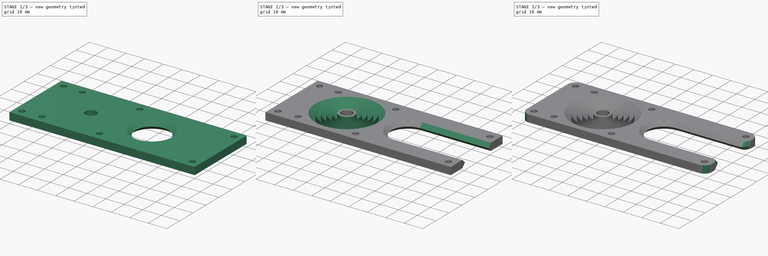
[diagram: build sequence overview — one tinted view per stage of 3, left to right]
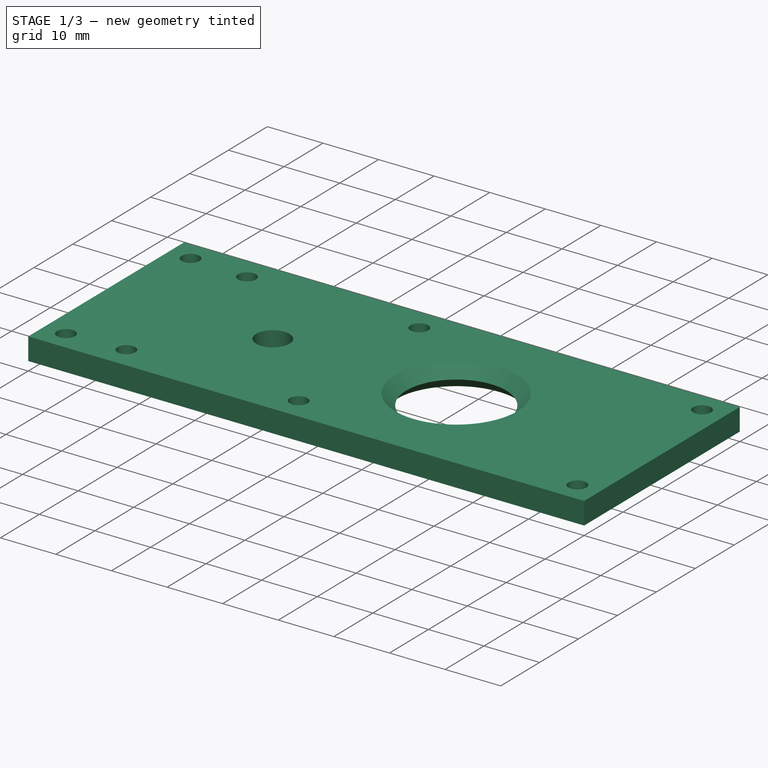
[diagram: stage 1 of 3 — iso view after this stage's code; geometry added in this stage tinted green]
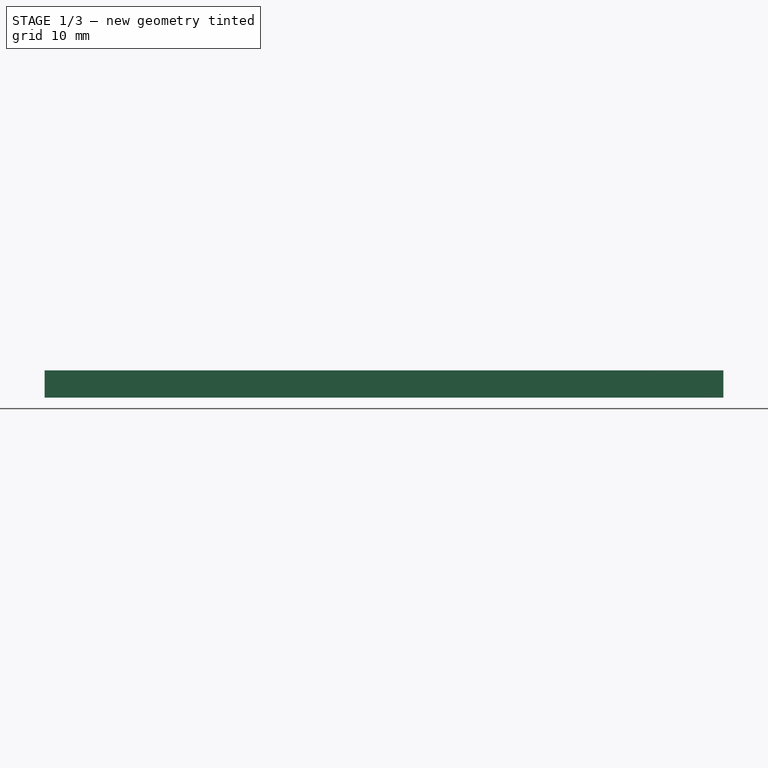
[diagram: stage 1 of 3 — front view after this stage's code; geometry added in this stage tinted green]
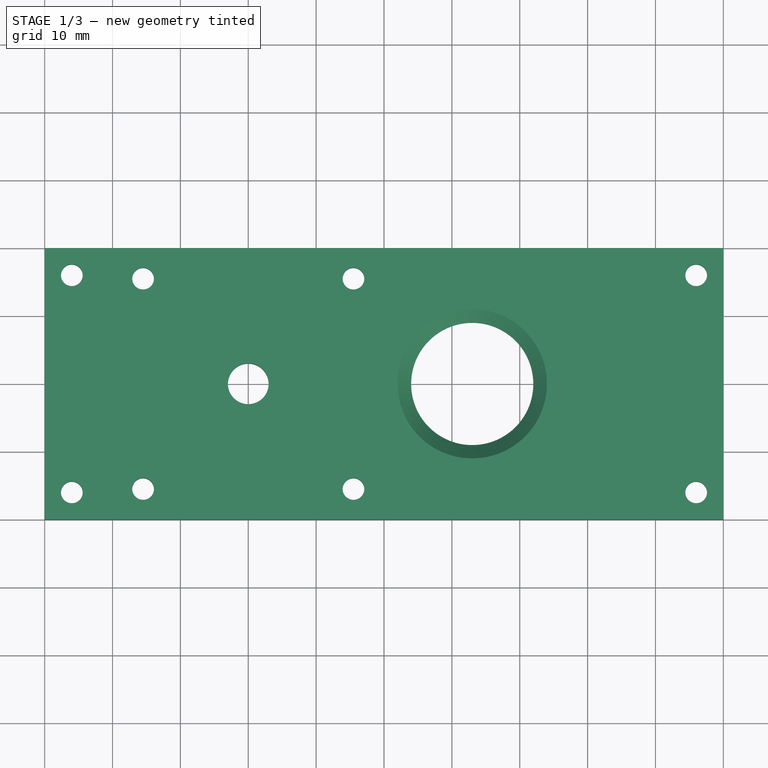
[diagram: stage 1 of 3 — top view after this stage's code; geometry added in this stage tinted green]
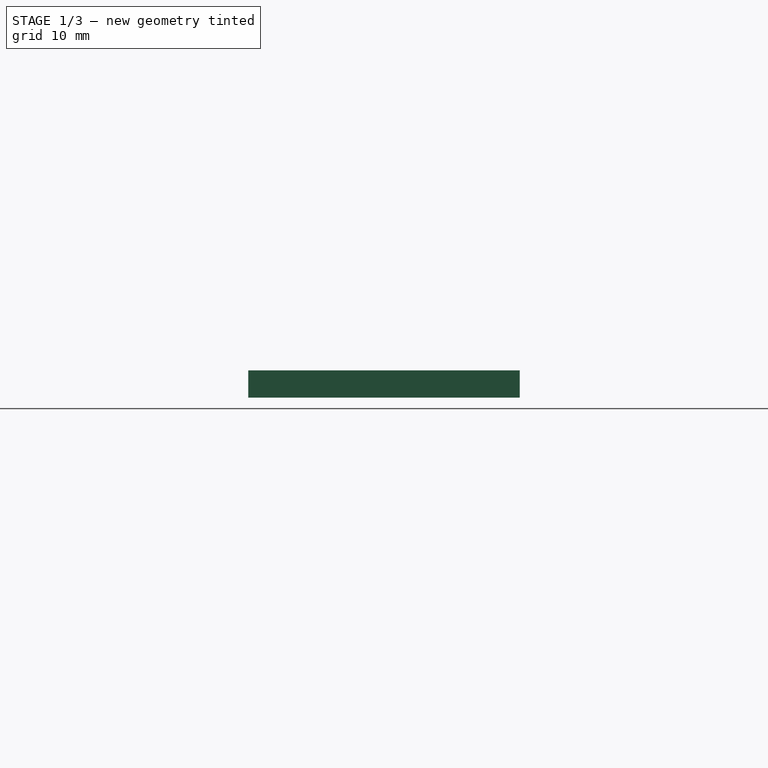
[diagram: stage 1 of 3 — right view after this stage's code; geometry added in this stage tinted green]
FCSTD DOCUMENT  (FreeCAD 0.18R15441 (Git))
Label: FrameBottom
License: All rights reserved
LicenseURL: http://en.wikipedia.org/wiki/All_rights_reserved
objects: Sketcher::SketchObject×9, PartDesign::Plane×3, PartDesign::SubtractiveLoft×2, PartDesign::Fillet×2, PartDesign::Pad×1, PartDesign::Pocket×1, PartDesign::Line×1, PartDesign::Groove×1, PartDesign::Body×1, Part::FeaturePython×1, App::Part×1
note: 27 computed .brp shape members not serialized (recipe doc carries the construction recipe); baked Part::Feature solids carry a one-line shape summary decoded from their .brp

FEATURE [Sketcher::SketchObject] Sketch  label="FB_BaseSketch"
  MapMode = 5
  Placement = pos=(0,0,0) rot=(0.57735,0.57735,0.57735;2.0944rad)
  Support = -> [YZ_Plane001]
  sketch-geometry (8):
    g0: LineSegment StartX=0 StartY=2 StartZ=0 EndX=-20 EndY=2 EndZ=0
    g1: LineSegment StartX=-20 StartY=2 StartZ=0 EndX=-20 EndY=0 EndZ=0
    g2: LineSegment StartX=-20 StartY=0 StartZ=0 EndX=-20 EndY=-2 EndZ=0
    g3: LineSegment StartX=-20 StartY=-2 StartZ=0 EndX=0 EndY=-2 EndZ=0
    g4: LineSegment StartX=0 StartY=-2 StartZ=0 EndX=20 EndY=-2 EndZ=0
    g5: LineSegment StartX=20 StartY=-2 StartZ=0 EndX=20 EndY=0 EndZ=0
    g6: LineSegment StartX=20 StartY=0 StartZ=0 EndX=20 EndY=2 EndZ=0
    g7: LineSegment StartX=20 StartY=2 StartZ=0 EndX=0 EndY=2 EndZ=0
  constraints (24):
    c: PointOnObject(g0,g-2)
    c: Horizontal(g0)
    c: Coincident(g1,g0)
    c: PointOnObject(g1,g-1)
    c: Coincident(g2,g1)
    c: Vertical(g2)
    c: Vertical(g1)
    c: Coincident(g3,g2)
    c: PointOnObject(g3,g-2)
    c: Horizontal(g3)
    c: Coincident(g4,g3)
    c: Horizontal(g4)
    c: Coincident(g5,g4)
    c: Vertical(g5)
    c: PointOnObject(g5,g-1)
    c: Coincident(g6,g5)
    c: Vertical(g6)
    c: Coincident(g7,g6)
    c: Coincident(g7,g0)
    c: Horizontal(g7)
    c: Equal(g3,g4)
    c: Equal(g1,g2)
    c: Distance(g0,g6) = 40
    c: Distance(g0,g2) = 4
FEATURE [PartDesign::Pad] Pad  label="FB_BasePad"
  Length = 100
  Length2 = 100
  Placement = pos=(0,0,0) rot=(0.57735,0.57735,0.57735;2.0944rad)
  Profile = -> Sketch
  Type = 0
FEATURE [Sketcher::SketchObject] Sketch001  label="FB_MotorClampingSketch"
  ExternalGeometry = -> [Sketch]
  MapMode = 5
  Support = -> [XY_Plane001]
  sketch-geometry (21):
    g0: LineSegment [constr] StartX=45.5 StartY=-15.5 StartZ=0 EndX=45.5 EndY=15.5 EndZ=0
    g1: LineSegment [constr] StartX=45.5 StartY=15.5 StartZ=0 EndX=14.5 EndY=15.5 EndZ=0
    g2: LineSegment [constr] StartX=14.5 StartY=15.5 StartZ=0 EndX=14.5 EndY=-15.5 EndZ=0
    g3: LineSegment [constr] StartX=14.5 StartY=-15.5 StartZ=0 EndX=45.5 EndY=-15.5 EndZ=0
    g4: Circle [constr] CenterX=30 CenterY=0 CenterZ=0 NormalX=0 NormalY=0 NormalZ=1 AngleXU=0 Radius=21.9203
    g5: Circle CenterX=14.5 CenterY=15.5 CenterZ=0 NormalX=0 NormalY=0 NormalZ=1 AngleXU=0 Radius=1.6
    g6: Circle CenterX=45.5 CenterY=15.5 CenterZ=0 NormalX=0 NormalY=0 NormalZ=1 AngleXU=0 Radius=1.6
    g7: Circle CenterX=45.5 CenterY=-15.5 CenterZ=0 NormalX=0 NormalY=0 NormalZ=1 AngleXU=0 Radius=1.6
    g8: Circle CenterX=14.5 CenterY=-15.5 CenterZ=0 NormalX=0 NormalY=0 NormalZ=1 AngleXU=0 Radius=1.6
    g9: Circle CenterX=30 CenterY=0 CenterZ=0 NormalX=0 NormalY=0 NormalZ=1 AngleXU=0 Radius=3
    g10: Circle CenterX=4 CenterY=16 CenterZ=0 NormalX=0 NormalY=0 NormalZ=1 AngleXU=0 Radius=1.6
    g11: Circle CenterX=4 CenterY=-16 CenterZ=0 NormalX=0 NormalY=0 NormalZ=1 AngleXU=0 Radius=1.6
    g12: LineSegment [constr] StartX=4 StartY=16 StartZ=0 EndX=4 EndY=20 EndZ=0
    g13: LineSegment [constr] StartX=4 StartY=20 StartZ=0 EndX=2.0002e-12 EndY=20 EndZ=0
    g14: LineSegment [constr] StartX=4 StartY=20 StartZ=0 EndX=8 EndY=20 EndZ=0
    g15: LineSegment [constr] StartX=8 StartY=20 StartZ=0 EndX=92 EndY=20 EndZ=0
    g16: LineSegment [constr] StartX=92 StartY=20 StartZ=0 EndX=96 EndY=20 EndZ=0
    g17: LineSegment [constr] StartX=96 StartY=20 StartZ=0 EndX=100 EndY=20 EndZ=0
    g18: LineSegment [constr] StartX=96 StartY=20 StartZ=0 EndX=96 EndY=16 EndZ=0
    g19: Circle CenterX=96 CenterY=16 CenterZ=0 NormalX=0 NormalY=0 NormalZ=1 AngleXU=0 Radius=1.6
    g20: Circle CenterX=96 CenterY=-16 CenterZ=0 NormalX=0 NormalY=0 NormalZ=1 AngleXU=0 Radius=1.6
  constraints (54):
    c: Coincident(g0,g1)
    c: Coincident(g1,g2)
    c: Coincident(g2,g3)
    c: Coincident(g3,g0)
    c: Equal(g0,g1)
    c: Equal(g0,g2)
    c: Equal(g0,g3)
    c: PointOnObject(g0,g4)
    c: PointOnObject(g1,g4)
    c: PointOnObject(g2,g4)
    c: PointOnObject(g3,g4)
    c: PointOnObject(g4,g-1)
    c: Distance(g-1,g4) = 30
    c: Vertical(g0)
    c: Distance(g1) = 31
    c: Coincident(g5,g1)
    c: Coincident(g6,g0)
    c: Coincident(g7,g0)
    c: Coincident(g8,g2)
    c: Equal(g8,g5)
    c: Equal(g5,g6)
    c: Equal(g6,g7)
    c: Radius(g5) = 1.6
    c: Coincident(g9,g4)
    c: Radius(g9) = 3
    c: Symmetric(g11,g10,g-1)
    c: Equal(g10,g11)
    c: Coincident(g12,g10)
    c: Vertical(g12)
    c: Coincident(g13,g12)
    c: Coincident(g13,g-3)
    c: Horizontal(g13)
    c: Equal(g12,g13)
    c: Coincident(g14,g12)
    c: Horizontal(g14)
    c: Equal(g14,g12)
    c: Distance(g14,g13) = 8
    c: Coincident(g15,g14)
    c: Horizontal(g15)
    c: Coincident(g16,g15)
    c: Horizontal(g16)
    c: Coincident(g17,g16)
    c: Horizontal(g17)
    c: Coincident(g18,g16)
    c: Vertical(g18)
    c: Equal(g16,g17)
    c: Equal(g17,g18)
    c: Distance(g13,g17) = 100
    c: Distance(g15,g17) = 8
    c: Coincident(g19,g18)
    c: Symmetric(g19,g20,g-1)
    c: Equal(g19,g20)
    c: Equal(g10,g5)
    c: Equal(g5,g19)
FEATURE [PartDesign::Pocket] Pocket  label="FB_MotorClampingPocket"
  BaseFeature = -> Pad
  Length = 5
  Length2 = 100
  Midplane = true
  Placement = pos=(0,0,0) rot=(0.57735,0.57735,0.57735;2.0944rad)
  Profile = -> Sketch001
  Type = 1
FEATURE [Sketcher::SketchObject] Sketch003  label="FB_RailEndCenterSketch"
  ExternalGeometry = -> [Sketch001]
  MapMode = 5
  Support = -> [XY_Plane001]
  sketch-geometry (1):
    g0: Circle CenterX=63 CenterY=0 CenterZ=0 NormalX=0 NormalY=0 NormalZ=1 AngleXU=0 Radius=9
  constraints (3):
    c: PointOnObject(g0,g-1)
    c: Radius(g0) = 9
    c: Distance(g-3,g0) = 33
FEATURE [PartDesign::Plane] DatumPlane  label="FB_TopPlane"
  AttachmentOffset = pos=(0,0,2) rot=(0,0,1;0rad)
  Length = 123.266
  MapMode = 5
  Placement = pos=(0,0,2) rot=(0,0,1;0rad)
  ResizeMode = 0
  Support = -> [XY_Plane001]
  Width = 53.2665
FEATURE [PartDesign::Plane] DatumPlane001  label="FB_BottomPlane"
  AttachmentOffset = pos=(0,0,-2) rot=(0,0,1;0rad)
  Length = 123.266
  MapMode = 5
  Placement = pos=(0,0,-2) rot=(0,0,1;0rad)
  ResizeMode = 0
  Support = -> [XY_Plane001]
  Width = 53.2665
FEATURE [Sketcher::SketchObject] Sketch004  label="FB_RailEndTopSketch"
  ExternalGeometry = -> [Sketch003]
  MapMode = 5
  Placement = pos=(0,0,2) rot=(0,0,1;0rad)
  Support = -> [DatumPlane]
  sketch-geometry (1):
    g0: Circle CenterX=63 CenterY=0 CenterZ=0 NormalX=0 NormalY=0 NormalZ=1 AngleXU=0 Radius=11
  constraints (2):
    c: Coincident(g0,g-3)
    c: Radius(g0) = 11
FEATURE [Sketcher::SketchObject] Sketch005  label="FB_RailEndBottomSketch"
  ExternalGeometry = -> [Sketch004]
  MapMode = 5
  Placement = pos=(0,0,-2) rot=(0,0,1;0rad)
  Support = -> [DatumPlane001]
  sketch-geometry (1):
    g0: Circle CenterX=63 CenterY=0 CenterZ=0 NormalX=0 NormalY=0 NormalZ=1 AngleXU=0 Radius=11
  constraints (2):
    c: Coincident(g0,g-3)
    c: Equal(g0,g-3)
FEATURE [PartDesign::SubtractiveLoft] SubtractiveLoft  label="FB_RailEndLoft"
  BaseFeature = -> Pocket
  Closed = false
  Placement = pos=(0,0,0) rot=(0.57735,0.57735,0.57735;2.0944rad)
  Profile = -> Sketch004
  Ruled = true
  Sections = -> [Sketch003,Sketch005]
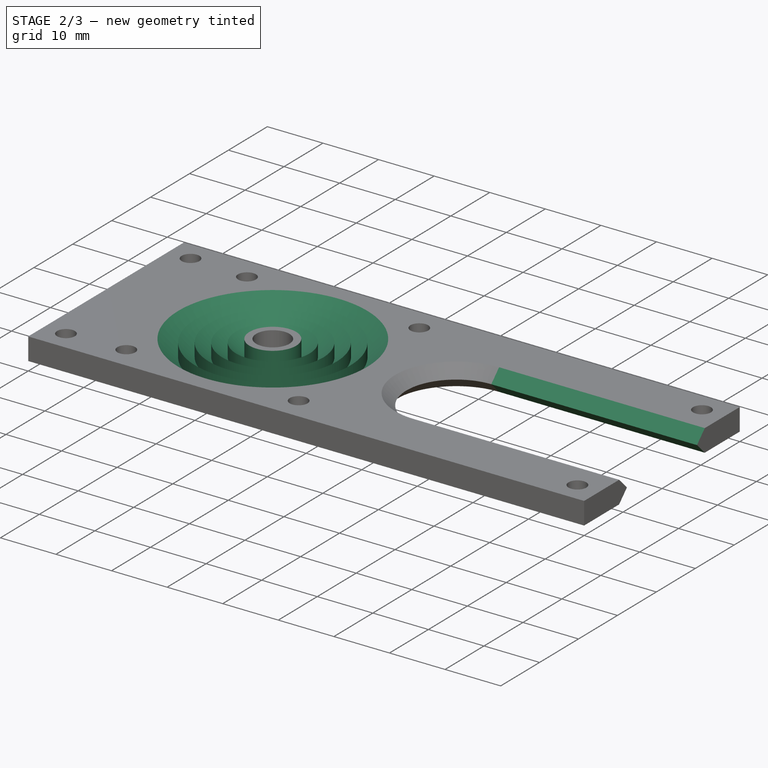
[diagram: stage 2 of 3 — iso view after this stage's code; geometry added in this stage tinted green]
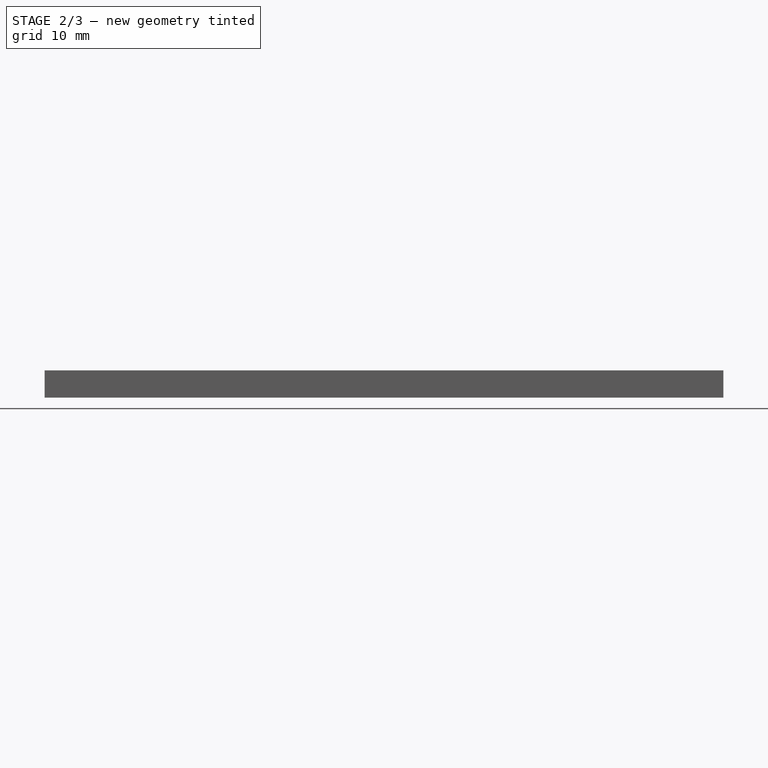
[diagram: stage 2 of 3 — front view after this stage's code; geometry added in this stage tinted green]
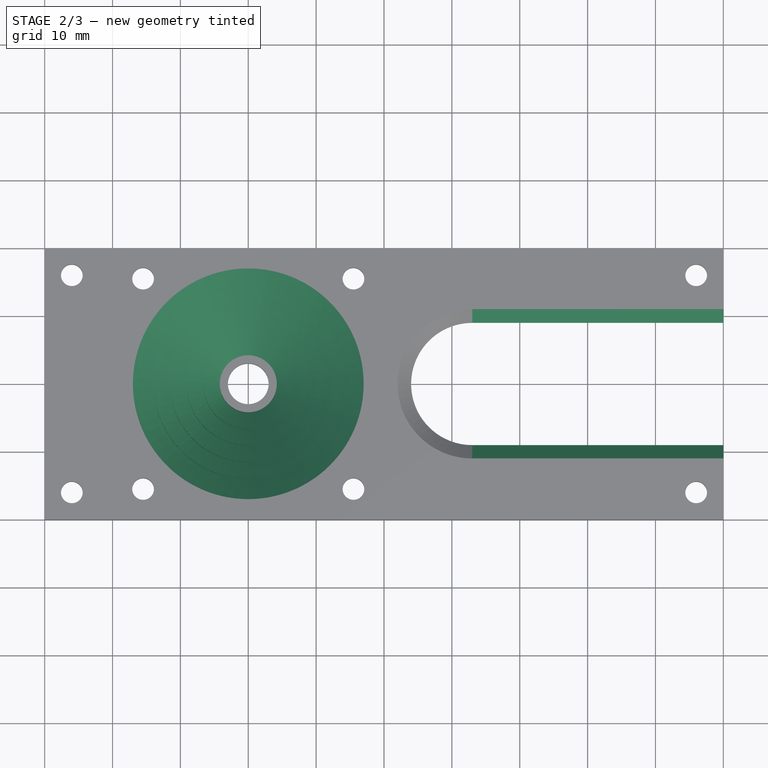
[diagram: stage 2 of 3 — top view after this stage's code; geometry added in this stage tinted green]
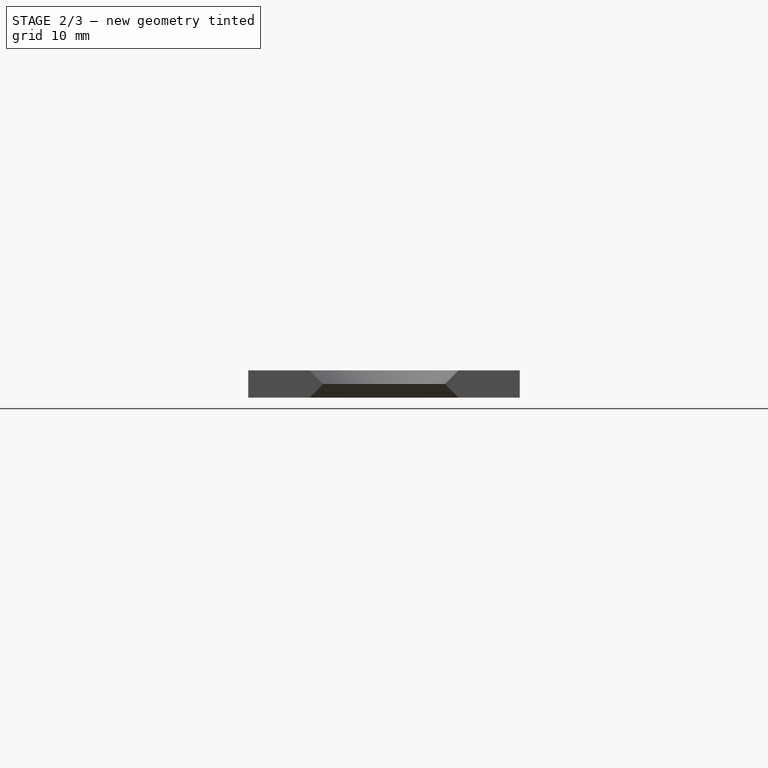
[diagram: stage 2 of 3 — right view after this stage's code; geometry added in this stage tinted green]
FEATURE [Sketcher::SketchObject] Sketch006  label="FB_RailCenter"
  ExternalGeometry = -> [Sketch003]
  MapMode = 5
  Support = -> [XY_Plane001]
  sketch-geometry (5):
    g0: LineSegment StartX=63 StartY=0 StartZ=0 EndX=63 EndY=9 EndZ=0
    g1: LineSegment StartX=63 StartY=0 StartZ=0 EndX=63 EndY=-9 EndZ=0
    g2: LineSegment StartX=63 StartY=9 StartZ=0 EndX=113 EndY=9 EndZ=0
    g3: LineSegment StartX=63 StartY=-9 StartZ=0 EndX=113 EndY=-9 EndZ=0
    g4: LineSegment StartX=113 StartY=9 StartZ=0 EndX=113 EndY=-9 EndZ=0
  constraints (14):
    c: Coincident(g0,g-3)
    c: PointOnObject(g0,g-3)
    c: Vertical(g0)
    c: Coincident(g1,g0)
    c: PointOnObject(g1,g-3)
    c: Vertical(g1)
    c: Coincident(g2,g0)
    c: Horizontal(g2)
    c: Coincident(g3,g1)
    c: Horizontal(g3)
    c: Coincident(g4,g2)
    c: Coincident(g4,g3)
    c: Vertical(g4)
    c: Distance(g2) = 50
FEATURE [Sketcher::SketchObject] Sketch007  label="FB_RailTop"
  ExternalGeometry = -> [Sketch006,Sketch004]
  MapMode = 5
  Placement = pos=(0,0,2) rot=(0,0,1;0rad)
  Support = -> [DatumPlane]
  sketch-geometry (6):
    g0: LineSegment StartX=63 StartY=0 StartZ=0 EndX=63 EndY=11 EndZ=0
    g1: LineSegment StartX=63 StartY=0 StartZ=0 EndX=63 EndY=-11 EndZ=0
    g2: LineSegment StartX=63 StartY=11 StartZ=0 EndX=113 EndY=11 EndZ=0
    g3: LineSegment StartX=63 StartY=-11 StartZ=0 EndX=113 EndY=-11 EndZ=0
    g4: LineSegment StartX=113 StartY=11 StartZ=0 EndX=113 EndY=-11 EndZ=0
    g5: LineSegment [constr] StartX=113 StartY=9 StartZ=0 EndX=113 EndY=11 EndZ=0
  constraints (16):
    c: Coincident(g0,g-4)
    c: PointOnObject(g0,g-4)
    c: Vertical(g0)
    c: Coincident(g1,g0)
    c: PointOnObject(g1,g-4)
    c: Vertical(g1)
    c: Coincident(g2,g0)
    c: Horizontal(g2)
    c: Coincident(g3,g1)
    c: Horizontal(g3)
    c: Coincident(g4,g2)
    c: Coincident(g4,g3)
    c: Vertical(g4)
    c: Coincident(g5,g-3)
    c: Coincident(g5,g2)
    c: Vertical(g5)
FEATURE [Sketcher::SketchObject] Sketch008  label="FB_RailBottom"
  ExternalGeometry = -> [Sketch007]
  MapMode = 5
  Placement = pos=(0,0,-2) rot=(0,0,1;0rad)
  Support = -> [DatumPlane001]
  sketch-geometry (5):
    g0: LineSegment StartX=63 StartY=11 StartZ=0 EndX=63 EndY=0 EndZ=0
    g1: LineSegment StartX=63 StartY=0 StartZ=0 EndX=63 EndY=-11 EndZ=0
    g2: LineSegment StartX=63 StartY=-11 StartZ=0 EndX=113 EndY=-11 EndZ=0
    g3: LineSegment StartX=113 StartY=-11 StartZ=0 EndX=113 EndY=11 EndZ=0
    g4: LineSegment StartX=113 StartY=11 StartZ=0 EndX=63 EndY=11 EndZ=0
  constraints (10):
    c: Coincident(g0,g-4)
    c: Coincident(g0,g-5)
    c: Coincident(g1,g0)
    c: Coincident(g1,g-5)
    c: Coincident(g2,g1)
    c: Coincident(g2,g-3)
    c: Coincident(g3,g2)
    c: Coincident(g3,g-3)
    c: Coincident(g4,g3)
    c: Coincident(g4,g0)
FEATURE [PartDesign::SubtractiveLoft] SubtractiveLoft001  label="FB_RailLoft"
  BaseFeature = -> SubtractiveLoft
  Closed = false
  Placement = pos=(0,0,0) rot=(0.57735,0.57735,0.57735;2.0944rad)
  Profile = -> Sketch007
  Ruled = true
  Sections = -> [Sketch006,Sketch008]
FEATURE [PartDesign::Line] DatumLine
  AttacherType = Attacher::AttachEngineLine
  AttachmentOffset = pos=(0,30,0) rot=(0,0,1;0rad)
  MapMode = 17
  Placement = pos=(30,-3.3856e-12,3.3873e-12) rot=(0.707107,0.707107,0;3.14159rad)
  Support = -> [YZ_Plane001]
FEATURE [PartDesign::Plane] DatumPlane002
  Length = 119.381
  MapMode = 4
  Placement = pos=(30,-3.3856e-12,3.3873e-12) rot=(-1,0,0;1.5708rad)
  ResizeMode = 0
  Support = -> [DatumLine]
  Width = 29.3808
FEATURE [Sketcher::SketchObject] Sketch009  label="AntiDustRibsSketch"
  MapMode = 5
  Placement = pos=(30,-3.3856e-12,3.3873e-12) rot=(-1,0,0;1.5708rad)
  Support = -> [DatumPlane002]
  sketch-geometry (12):
    g0: LineSegment StartX=4.2 StartY=-2 StartZ=0 EndX=4.2 EndY=1 EndZ=0
    g1: LineSegment StartX=4.2 StartY=1 StartZ=0 EndX=6.6381 EndY=-1.4 EndZ=0
    g2: LineSegment StartX=6.6381 StartY=-1.4 StartZ=0 EndX=6.6381 EndY=1 EndZ=0
    g3: LineSegment StartX=6.6381 StartY=1 StartZ=0 EndX=9.07619 EndY=-1.4 EndZ=0
    g4: LineSegment StartX=9.07619 StartY=-1.4 StartZ=0 EndX=9.07619 EndY=1 EndZ=0
    g5: LineSegment StartX=9.07619 StartY=1 StartZ=0 EndX=11.5143 EndY=-1.4 EndZ=0
    g6: LineSegment StartX=11.5143 StartY=-1.4 StartZ=0 EndX=11.5143 EndY=1 EndZ=0
    g7: LineSegment StartX=11.5143 StartY=1 StartZ=0 EndX=13.9524 EndY=-1.4 EndZ=0
    g8: LineSegment StartX=13.9524 StartY=-1.4 StartZ=0 EndX=13.9524 EndY=1 EndZ=0
    g9: LineSegment StartX=13.9524 StartY=1 StartZ=0 EndX=17 EndY=-2 EndZ=0
    g10: LineSegment StartX=4.2 StartY=-2 StartZ=0 EndX=17 EndY=-2 EndZ=0
    g11: LineSegment [constr] StartX=4.2 StartY=1 StartZ=0 EndX=13.9524 EndY=1 EndZ=0
  constraints (35):
    c: Coincident(g1,g0)
    c: Coincident(g2,g1)
    c: Coincident(g3,g2)
    c: Coincident(g4,g3)
    c: Coincident(g5,g4)
    c: Coincident(g7,g6)
    c: Coincident(g8,g7)
    c: Coincident(g9,g8)
    c: Coincident(g10,g0)
    c: Coincident(g10,g9)
    c: Horizontal(g10)
    c: DistanceY(g-1,g0) = 1
    c: DistanceX(g-2,g0) = 4.2
    c: Distance(g10) = 12.8
    c: Coincident(g11,g0)
    c: Coincident(g11,g8)
    c: Horizontal(g11)
    c: Vertical(g2)
    c: DistanceY(g-1,g0) = -2
    c: Coincident(g5,g6)
    c: Parallel(g1,g3)
    c: Parallel(g3,g5)
    c: Parallel(g5,g7)
    c: Parallel(g7,g9)
    c: Parallel(g8,g6)
    c: Parallel(g6,g4)
    c: Parallel(g4,g2)
    c: Equal(g1,g3)
    c: Equal(g3,g5)
    c: Equal(g5,g7)
    c: Equal(g2,g4)
    c: Equal(g4,g6)
    c: Equal(g6,g8)
    c: Vertical(g0)
    c: Distance(g2) = 2.4
FEATURE [PartDesign::Groove] Groove  label="AntiDustRibsGroove"
  Angle = 360
  Axis = (1.129e-13,-1.13e-13,-1)
  Base = (30,-3.3856e-12,3.3873e-12)
  BaseFeature = -> SubtractiveLoft001
  Placement = pos=(0,0,0) rot=(0.57735,0.57735,0.57735;2.0944rad)
  Profile = -> Sketch009
  ReferenceAxis = -> DatumLine
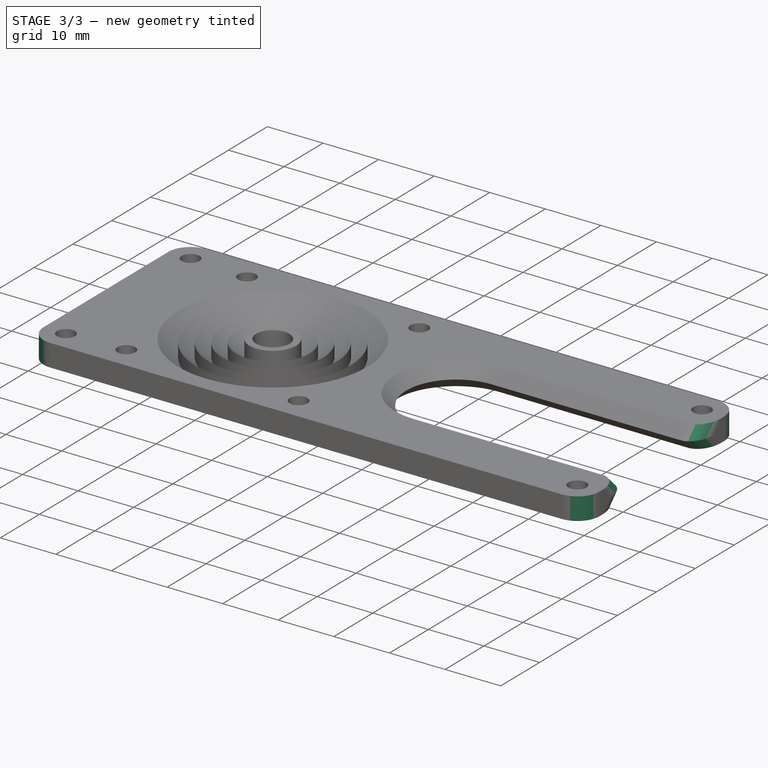
[diagram: stage 3 of 3 — iso view after this stage's code; geometry added in this stage tinted green]
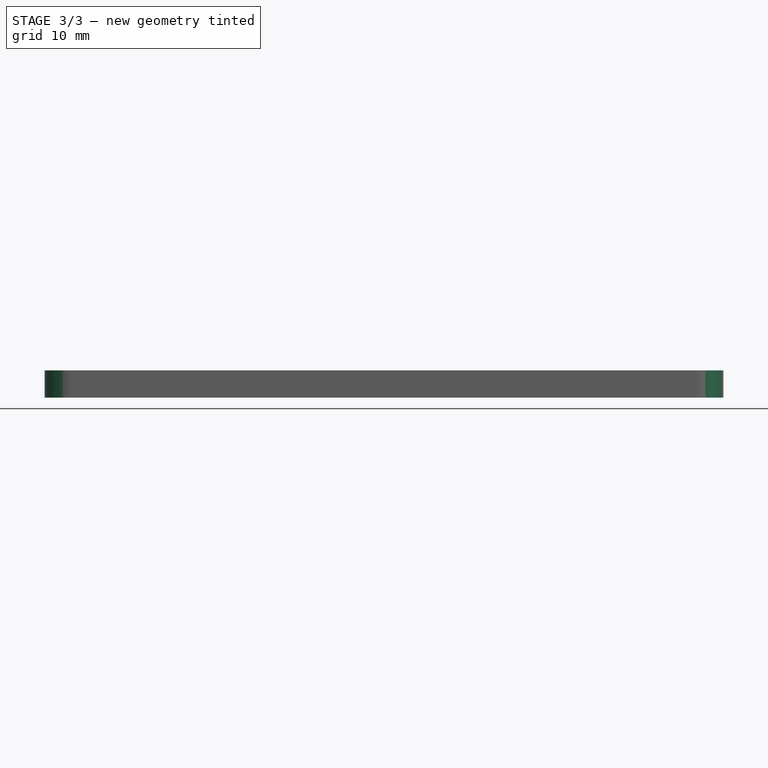
[diagram: stage 3 of 3 — front view after this stage's code; geometry added in this stage tinted green]
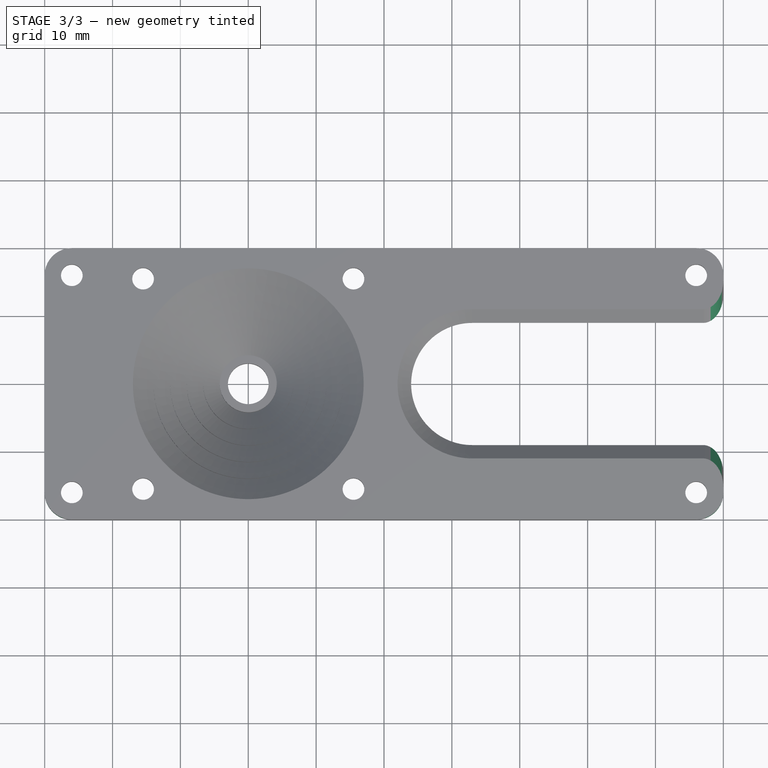
[diagram: stage 3 of 3 — top view after this stage's code; geometry added in this stage tinted green]
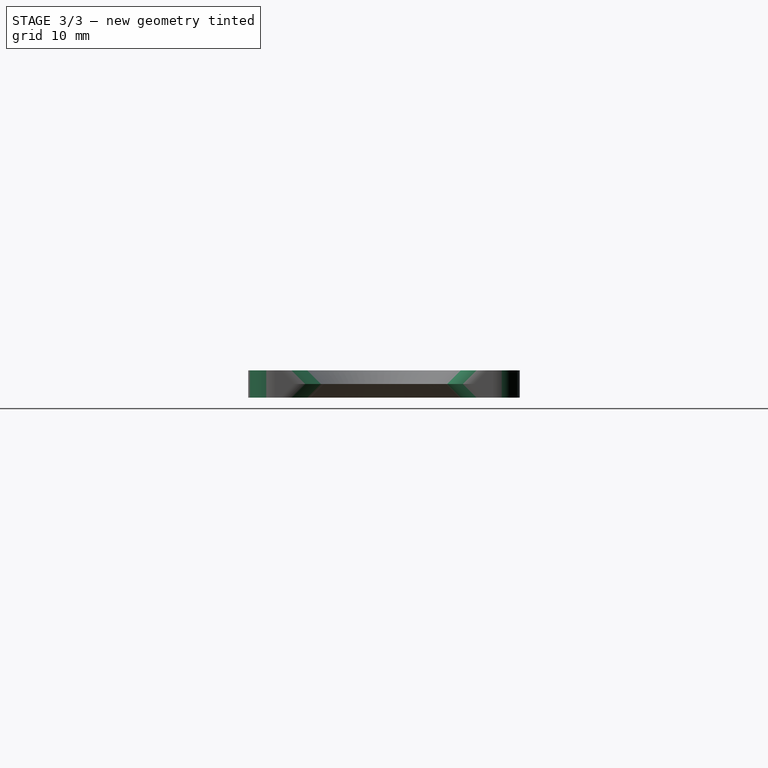
[diagram: stage 3 of 3 — right view after this stage's code; geometry added in this stage tinted green]
FEATURE [PartDesign::Fillet] Fillet  label="CornersFillet"
  Base = -> Groove [Edge13,Edge18,Edge66,Edge21]
  BaseFeature = -> Groove
  Placement = pos=(0,0,0) rot=(0.57735,0.57735,0.57735;2.0944rad)
  Radius = 4
FEATURE [PartDesign::Fillet] Fillet001  label="RailsFiller"
  Base = -> Fillet [Edge44,Edge84,Edge86,Edge43]
  BaseFeature = -> Fillet
  Placement = pos=(0,0,0) rot=(0.57735,0.57735,0.57735;2.0944rad)
  Radius = 3
FEATURE [PartDesign::Body] Body  label="FrameBottomBody"
  Group = -> [Sketch,Pad,Sketch001,Pocket,Sketch003,DatumPlane,DatumPlane001,Sketch004,Sketch005,SubtractiveLoft,Sketch006,Sketch007,Sketch008,SubtractiveLoft001,DatumLine,DatumPlane002,Sketch009,Groove,Fillet,Fillet001]
  Origin = -> Origin001
  Tip = -> Fillet001
FEATURE [Part::FeaturePython] refine  label="FrameBottomBody_Refined"  # WARN: FeaturePython — macro-defined, semantics opaque (R4)
  Base = -> Body
FEATURE [App::Part] Part  label="FrameBottom"
  Group = -> [Body,refine]
  License = CC BY 3.0
  LicenseURL = http://creativecommons.org/licenses/by/3.0/
  Origin = -> Origin
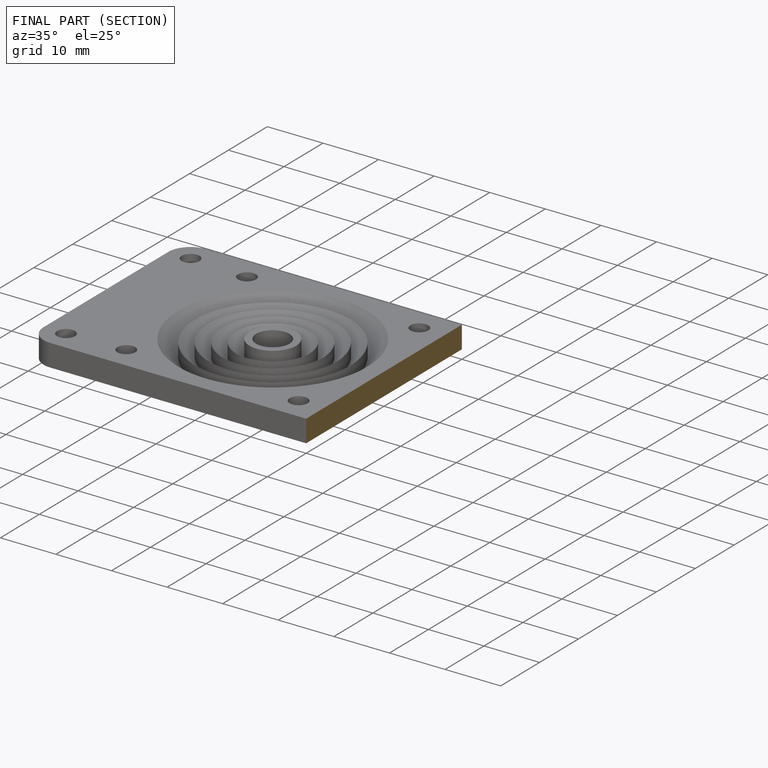
[diagram: finished part — half-section view (interior)]
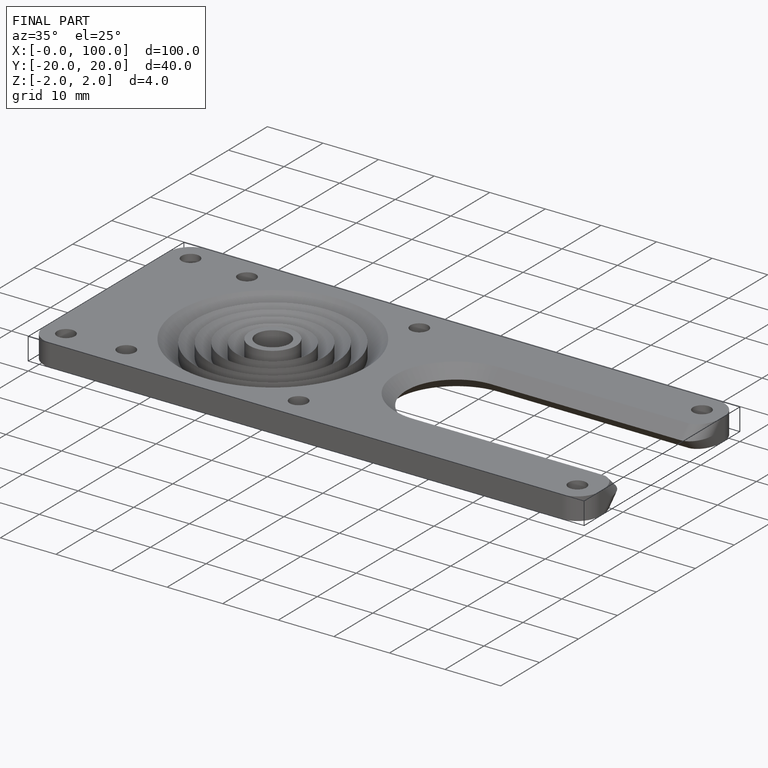
[diagram: finished part — iso view with bounding-box wireframe]
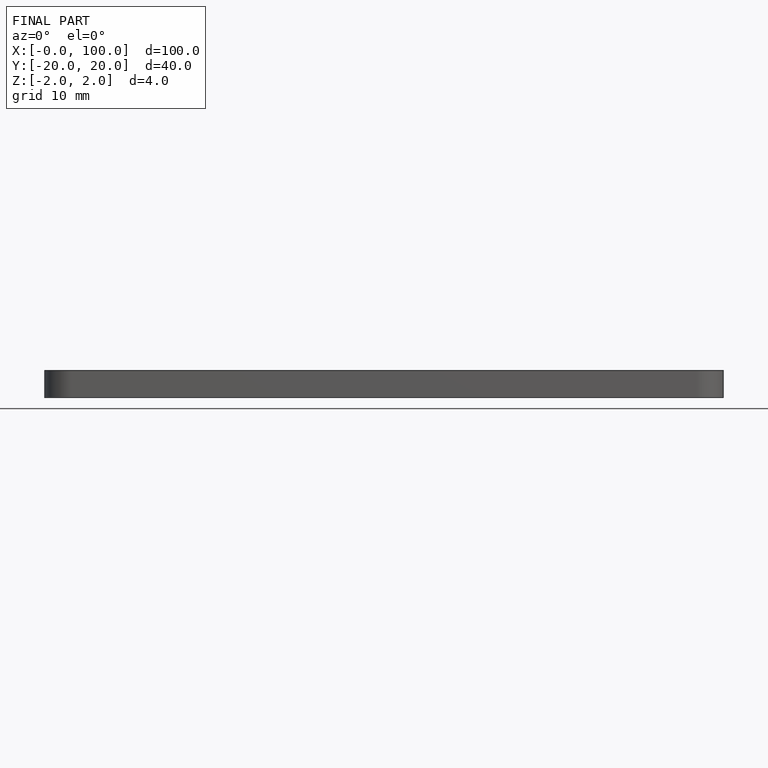
[diagram: finished part — front view with bounding-box wireframe]
